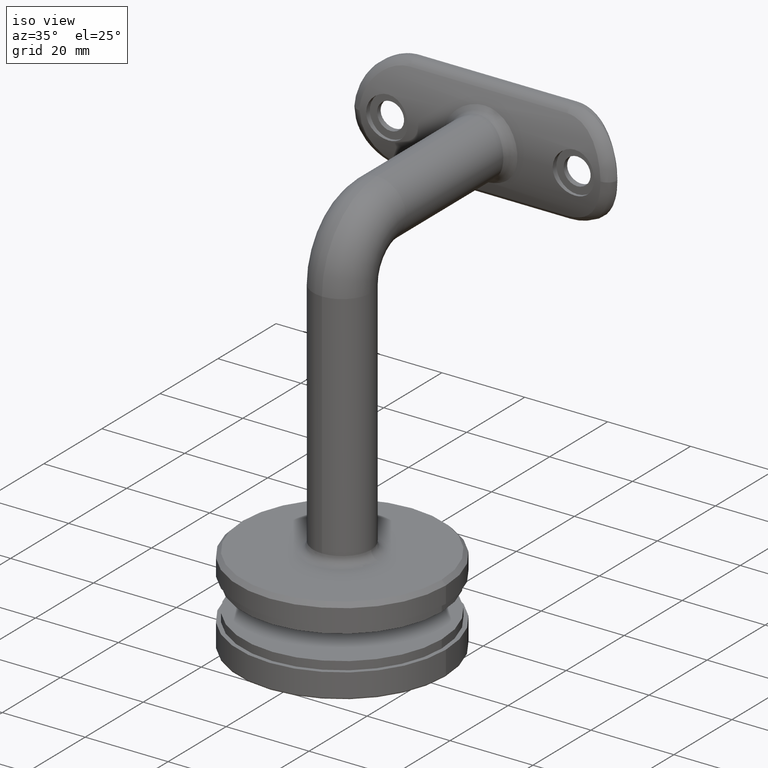
[diagram: clean part render]
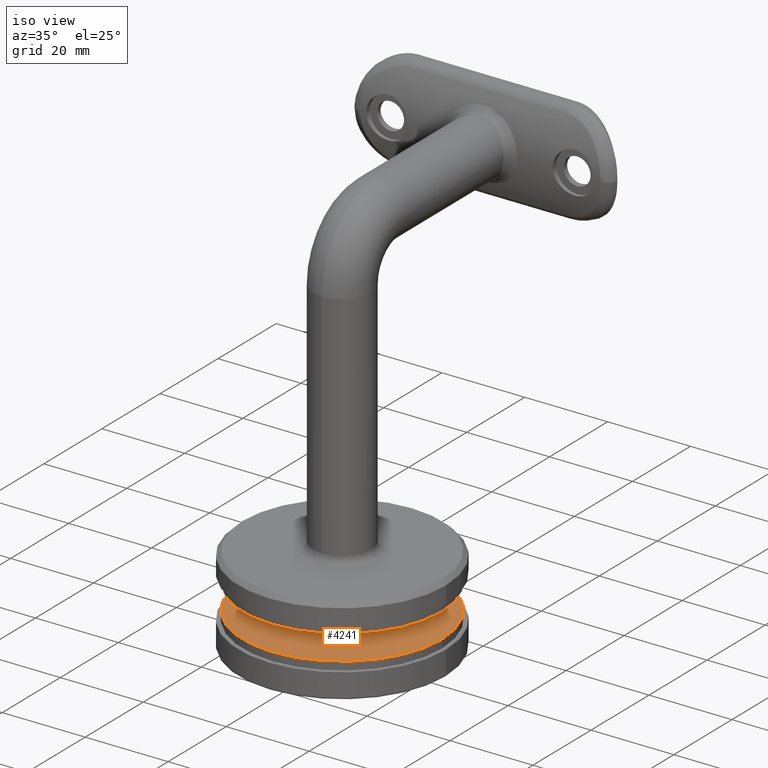
[diagram: same view with one face highlighted and labeled with its STEP entity id]
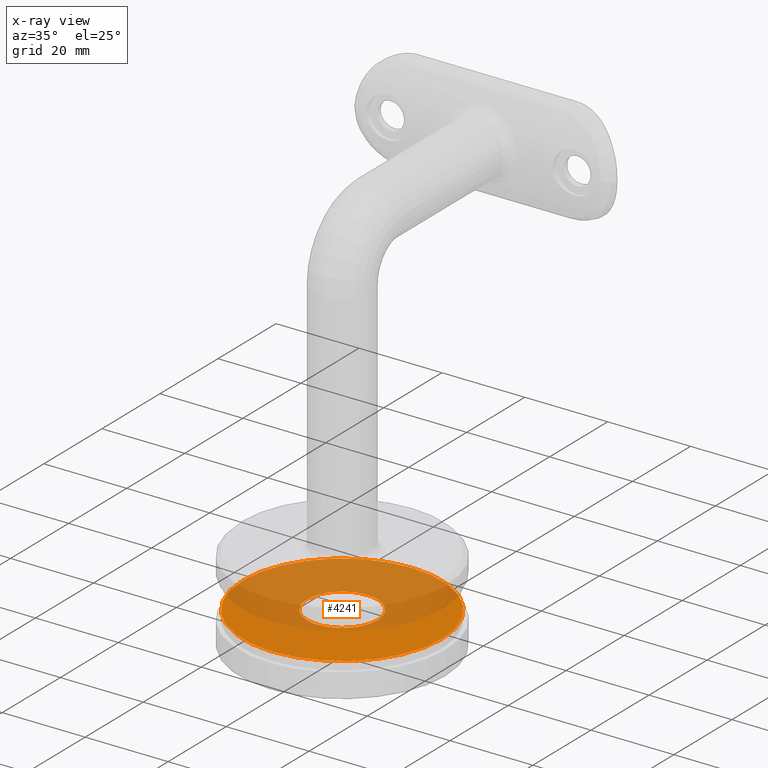
[diagram: x-ray of the same camera — body ghosted, the highlighted face saturated]
A machine part, iso view. The second image highlights one B-rep face of the part: STEP entity #4241.
The next image is the same camera in x-ray: the body ghosted, the highlighted face saturated — about 58% of this face is hidden behind the body in this view.
In plain terms, the highlighted planar face has unit normal (0, 0, -1).
Its self-contained STEP definition (entity closure, byte-faithful):
#764 = EDGE_LOOP ( 'NONE', ( #6433, #8498 ) ) ;
#765 = EDGE_CURVE ( 'NONE', #12136, #14354, #7554, .T. ) ;
#1063 = VERTEX_POINT ( 'NONE', #12104 ) ;
#1699 = DIRECTION ( 'NONE',  ( -1.000000000000000000, 0.000000000000000000, -0.000000000000000000 ) ) ;
#3072 = DIRECTION ( 'NONE',  ( -1.000000000000000000, 0.000000000000000000, 0.000000000000000000 ) ) ;
#3900 = CARTESIAN_POINT ( 'NONE',  ( -24.00000000000000355, 2.939152317953648289E-15, 2.000000000000001776 ) ) ;
#4062 = DIRECTION ( 'NONE',  ( -0.000000000000000000, -0.000000000000000000, 1.000000000000000000 ) ) ;
#4241 = ADVANCED_FACE ( 'NONE', ( #14485, #5799 ), #20858, .F. ) ;
#4538 = EDGE_LOOP ( 'NONE', ( #19068, #6859 ) ) ;
#4852 = DIRECTION ( 'NONE',  ( 0.000000000000000000, 0.000000000000000000, -1.000000000000000000 ) ) ;
#5799 = FACE_OUTER_BOUND ( 'NONE', #764, .T. ) ;
#6433 = ORIENTED_EDGE ( 'NONE', *, *, #765, .T. ) ;
#6859 = ORIENTED_EDGE ( 'NONE', *, *, #7984, .T. ) ;
#7114 = CIRCLE ( 'NONE', #13502, 8.500000000000000000 ) ;
#7186 = DIRECTION ( 'NONE',  ( 1.000000000000000000, 0.000000000000000000, 0.000000000000000000 ) ) ;
#7206 = DIRECTION ( 'NONE',  ( 0.000000000000000000, 0.000000000000000000, -1.000000000000000000 ) ) ;
#7375 = CARTESIAN_POINT ( 'NONE',  ( 24.00000000000000355, 0.000000000000000000, 2.000000000000001776 ) ) ;
#7554 = CIRCLE ( 'NONE', #14588, 24.00000000000000355 ) ;
#7652 = DIRECTION ( 'NONE',  ( 1.000000000000000000, 0.000000000000000000, 0.000000000000000000 ) ) ;
#7984 = EDGE_CURVE ( 'NONE', #18912, #1063, #16579, .T. ) ;
#8498 = ORIENTED_EDGE ( 'NONE', *, *, #9412, .T. ) ;
#8569 = EDGE_CURVE ( 'NONE', #1063, #18912, #7114, .T. ) ;
#9008 = CARTESIAN_POINT ( 'NONE',  ( 0.000000000000000000, 0.000000000000000000, 2.000000000000001776 ) ) ;
#9253 = CARTESIAN_POINT ( 'NONE',  ( 0.000000000000000000, 0.000000000000000000, 2.000000000000001776 ) ) ;
#9412 = EDGE_CURVE ( 'NONE', #14354, #12136, #14154, .T. ) ;
#10431 = CARTESIAN_POINT ( 'NONE',  ( 0.000000000000000000, 8.000000000000000000, 2.000000000000001776 ) ) ;
#12104 = CARTESIAN_POINT ( 'NONE',  ( -8.500000000000000000, 0.000000000000000000, 2.000000000000001776 ) ) ;
#12136 = VERTEX_POINT ( 'NONE', #7375 ) ;
#12767 = CARTESIAN_POINT ( 'NONE',  ( 8.500000000000000000, 1.040949779275250140E-15, 2.000000000000001776 ) ) ;
#12779 = AXIS2_PLACEMENT_3D ( 'NONE', #20640, #4852, #3072 ) ;
#13502 = AXIS2_PLACEMENT_3D ( 'NONE', #21232, #7206, #21309 ) ;
#14154 = CIRCLE ( 'NONE', #18931, 24.00000000000000355 ) ;
#14354 = VERTEX_POINT ( 'NONE', #3900 ) ;
#14485 = FACE_BOUND ( 'NONE', #4538, .T. ) ;
#14588 = AXIS2_PLACEMENT_3D ( 'NONE', #9008, #21134, #7186 ) ;
#15495 = DIRECTION ( 'NONE',  ( 0.000000000000000000, 0.000000000000000000, -1.000000000000000000 ) ) ;
#16579 = CIRCLE ( 'NONE', #12779, 8.500000000000000000 ) ;
#18912 = VERTEX_POINT ( 'NONE', #12767 ) ;
#18931 = AXIS2_PLACEMENT_3D ( 'NONE', #9253, #4062, #7652 ) ;
#19035 = AXIS2_PLACEMENT_3D ( 'NONE', #10431, #15495, #1699 ) ;
#19068 = ORIENTED_EDGE ( 'NONE', *, *, #8569, .T. ) ;
#20640 = CARTESIAN_POINT ( 'NONE',  ( 0.000000000000000000, 0.000000000000000000, 2.000000000000001776 ) ) ;
#20858 = PLANE ( 'NONE',  #19035 ) ;
#21134 = DIRECTION ( 'NONE',  ( -0.000000000000000000, -0.000000000000000000, 1.000000000000000000 ) ) ;
#21232 = CARTESIAN_POINT ( 'NONE',  ( 0.000000000000000000, 0.000000000000000000, 2.000000000000001776 ) ) ;
#21309 = DIRECTION ( 'NONE',  ( -1.000000000000000000, 0.000000000000000000, 0.000000000000000000 ) ) ;